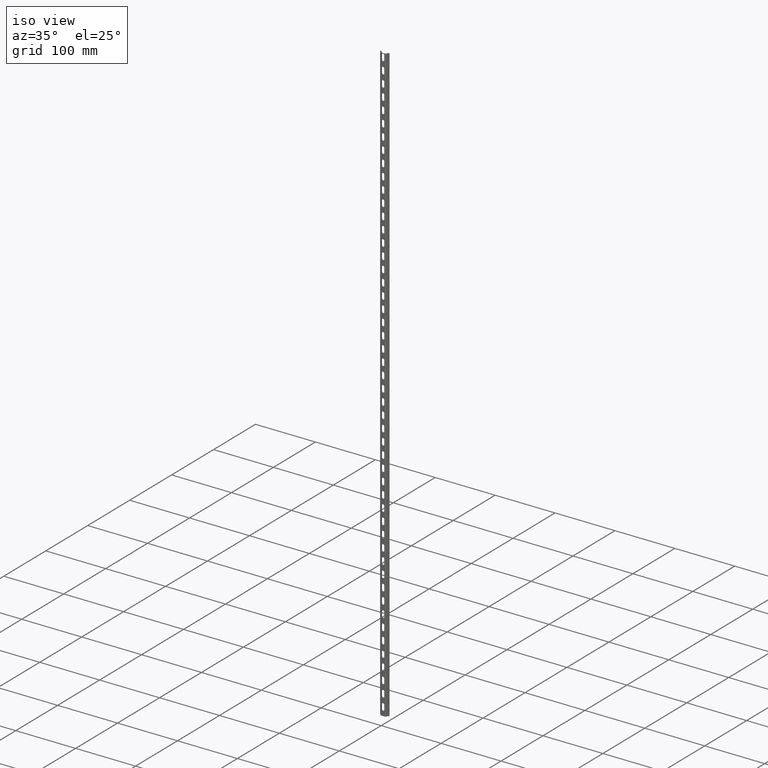
[diagram: clean part render]
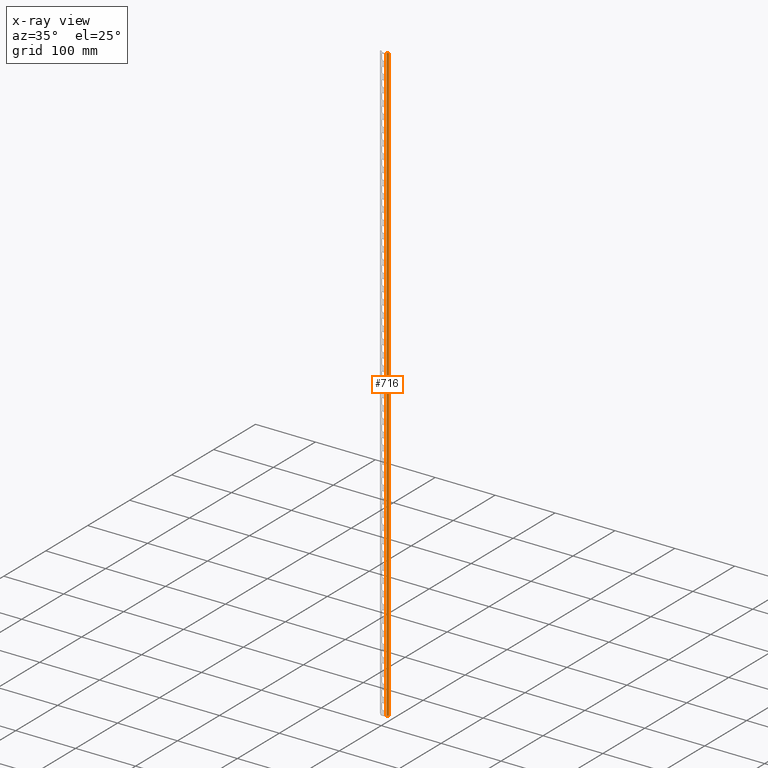
[diagram: x-ray — body ghosted, one internal face saturated and labeled with its STEP entity id]
A machine part, iso view, then the same camera in x-ray: the body is ghosted and one INTERNAL B-rep face — a face not visible from any outside direction — is saturated and labeled: STEP entity #716.
In plain terms, the highlighted cylindrical surface (edge-blend (fillet) strip) has radius 2.2 mm, axis along (-0, -0, -1).
Its self-contained STEP definition (entity closure, byte-faithful):
#616 = EDGE_CURVE ( 'NONE', #7746, #7703, #9263, .T. ) ;
#625 = EDGE_CURVE ( 'NONE', #7735, #7719, #9280, .T. ) ;
#716 = ADVANCED_FACE ( 'NONE', ( #1999 ), #1975, .T. ) ;
#808 = EDGE_CURVE ( 'NONE', #7719, #7703, #2285, .T. ) ;
#812 = EDGE_CURVE ( 'NONE', #7746, #7735, #2255, .T. ) ;
#1396 = DIRECTION ( 'NONE',  ( 0.0000000000000000000, 0.0000000000000000000, 1.000000000000000000 ) ) ;
#1432 = CARTESIAN_POINT ( 'NONE',  ( 9.199999999999475300, 3.099999999999913500, 1000.000000000000000 ) ) ;
#1433 = DIRECTION ( 'NONE',  ( -1.000000000000000000, 0.0000000000000000000, 0.0000000000000000000 ) ) ;
#1472 = CARTESIAN_POINT ( 'NONE',  ( 9.199999999999475300, 3.099999999999913500, 0.0000000000000000000 ) ) ;
#1478 = DIRECTION ( 'NONE',  ( -1.000000000000000000, 0.0000000000000000000, 0.0000000000000000000 ) ) ;
#1485 = DIRECTION ( 'NONE',  ( 0.0000000000000000000, 0.0000000000000000000, 1.000000000000000000 ) ) ;
#1975 = CYLINDRICAL_SURFACE ( 'NONE', #9338, 2.200000000000120100 ) ;
#1991 = DIRECTION ( 'NONE',  ( -1.000000000000000000, 0.0000000000000000000, 0.0000000000000000000 ) ) ;
#1999 = FACE_OUTER_BOUND ( 'NONE', #5472, .T. ) ;
#2003 = DIRECTION ( 'NONE',  ( -0.0000000000000000000, -0.0000000000000000000, -1.000000000000000000 ) ) ;
#2012 = CARTESIAN_POINT ( 'NONE',  ( 9.199999999999475300, 3.099999999999913500, 1000.000000000000000 ) ) ;
#2244 = CARTESIAN_POINT ( 'NONE',  ( 6.999999999999356100, 3.099999999999913500, 1000.000000000000000 ) ) ;
#2255 = LINE ( 'NONE', #2256, #9514 ) ;
#2256 = CARTESIAN_POINT ( 'NONE',  ( 9.199999999999411300, 5.300000000000033600, 1000.000000000000000 ) ) ;
#2269 = DIRECTION ( 'NONE',  ( 0.0000000000000000000, 0.0000000000000000000, 1.000000000000000000 ) ) ;
#2285 = LINE ( 'NONE', #2244, #9494 ) ;
#2315 = DIRECTION ( 'NONE',  ( -0.0000000000000000000, -0.0000000000000000000, -1.000000000000000000 ) ) ;
#5472 = EDGE_LOOP ( 'NONE', ( #8517, #8463, #8455, #8495 ) ) ;
#5825 = CARTESIAN_POINT ( 'NONE',  ( 6.999999999999342700, 3.099999999999913500, 0.0000000000000000000 ) ) ;
#5847 = CARTESIAN_POINT ( 'NONE',  ( 6.999999999999342700, 3.099999999999913500, 1000.000000000000000 ) ) ;
#5936 = CARTESIAN_POINT ( 'NONE',  ( 9.199999999999445100, 5.300000000000021100, 0.0000000000000000000 ) ) ;
#6050 = CARTESIAN_POINT ( 'NONE',  ( 9.199999999999445100, 5.300000000000021100, 1000.000000000000000 ) ) ;
#7703 = VERTEX_POINT ( 'NONE', #5847 ) ;
#7719 = VERTEX_POINT ( 'NONE', #5825 ) ;
#7735 = VERTEX_POINT ( 'NONE', #5936 ) ;
#7746 = VERTEX_POINT ( 'NONE', #6050 ) ;
#8455 = ORIENTED_EDGE ( 'NONE', *, *, #625, .T. ) ;
#8463 = ORIENTED_EDGE ( 'NONE', *, *, #812, .T. ) ;
#8495 = ORIENTED_EDGE ( 'NONE', *, *, #808, .T. ) ;
#8517 = ORIENTED_EDGE ( 'NONE', *, *, #616, .F. ) ;
#9239 = AXIS2_PLACEMENT_3D ( 'NONE', #1432, #1396, #1433 ) ;
#9263 = CIRCLE ( 'NONE', #9239, 2.200000000000120100 ) ;
#9280 = CIRCLE ( 'NONE', #9300, 2.200000000000120100 ) ;
#9300 = AXIS2_PLACEMENT_3D ( 'NONE', #1472, #1485, #1478 ) ;
#9338 = AXIS2_PLACEMENT_3D ( 'NONE', #2012, #2003, #1991 ) ;
#9494 = VECTOR ( 'NONE', #2269, 1000.000000000000000 ) ;
#9514 = VECTOR ( 'NONE', #2315, 1000.000000000000000 ) ;